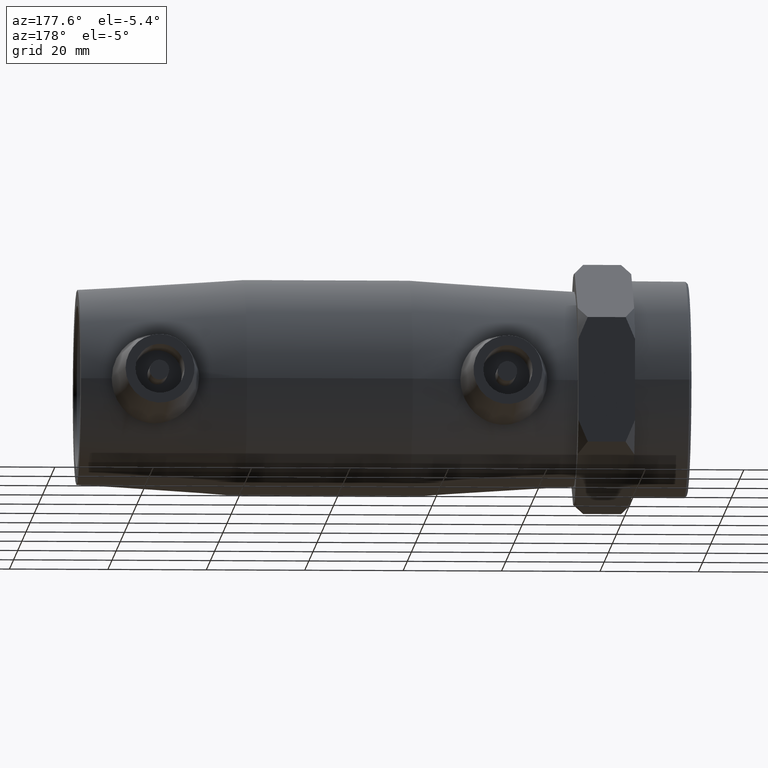
[diagram: clean part render]
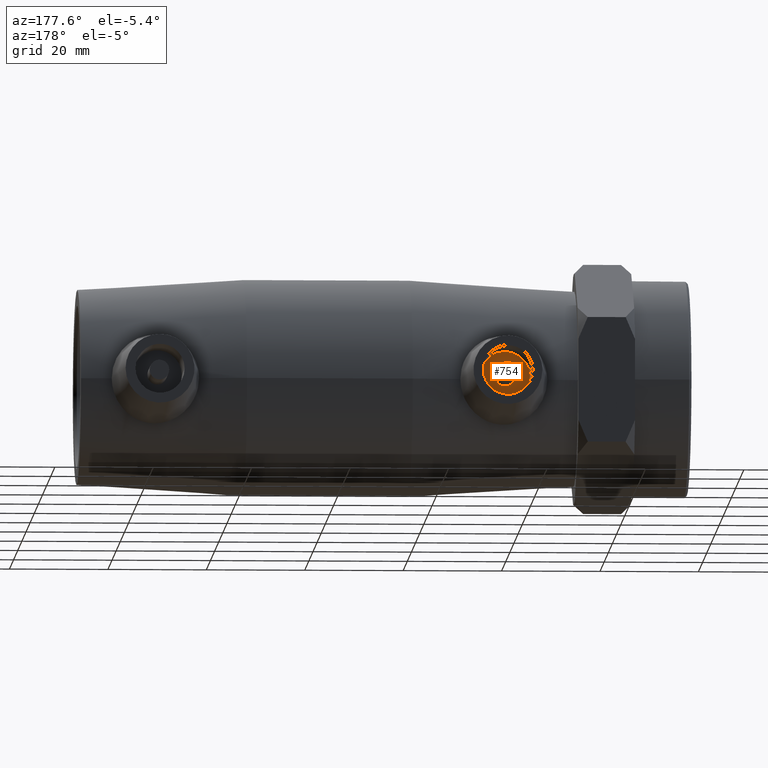
[diagram: same view with one face highlighted and labeled with its STEP entity id]
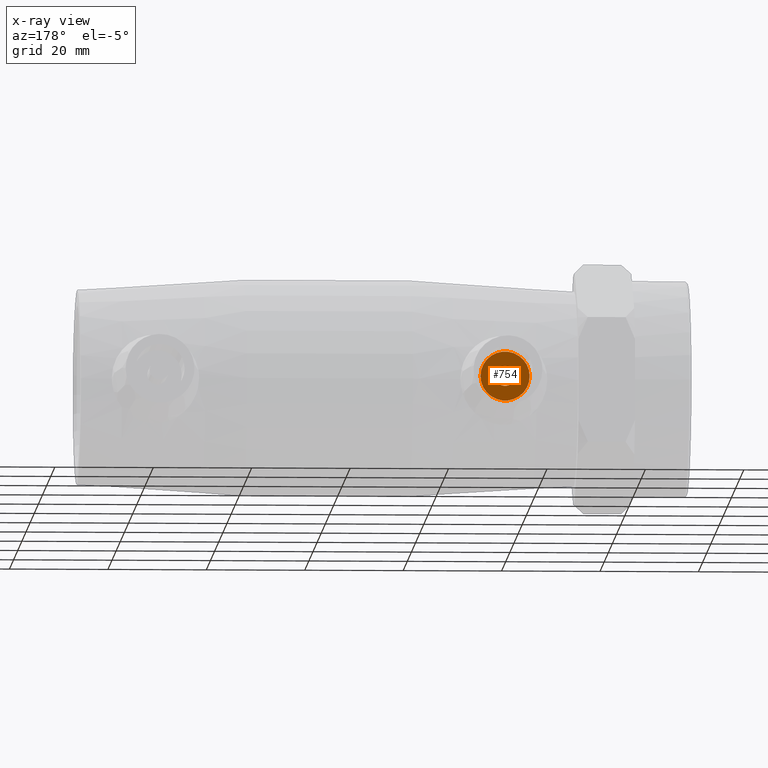
[diagram: x-ray of the same camera — body ghosted, the highlighted face saturated]
A machine part, auxiliary view. The second image highlights one B-rep face of the part: STEP entity #754.
The next image is the same camera in x-ray: the body ghosted, the highlighted face saturated — about 0% of this face is hidden behind the body in this view.
In plain terms, the highlighted planar face has unit normal (0, 1, 0).
Its self-contained STEP definition (entity closure, byte-faithful):
#118=PLANE('',#848);
#139=FACE_BOUND('',#266,.T.);
#195=FACE_OUTER_BOUND('',#265,.T.);
#265=EDGE_LOOP('',(#666));
#266=EDGE_LOOP('',(#667));
#326=CIRCLE('',#844,2.);
#327=CIRCLE('',#846,5.);
#395=VERTEX_POINT('',#1323);
#396=VERTEX_POINT('',#1326);
#490=EDGE_CURVE('',#395,#395,#326,.T.);
#491=EDGE_CURVE('',#396,#396,#327,.T.);
#666=ORIENTED_EDGE('',*,*,#491,.F.);
#667=ORIENTED_EDGE('',*,*,#490,.F.);
#754=ADVANCED_FACE('',(#195,#139),#118,.T.);
#844=AXIS2_PLACEMENT_3D('',#1324,#1045,#1046);
#846=AXIS2_PLACEMENT_3D('',#1327,#1049,#1050);
#848=AXIS2_PLACEMENT_3D('',#1330,#1053,#1054);
#1045=DIRECTION('center_axis',(0.,1.,0.));
#1046=DIRECTION('ref_axis',(-1.,0.,0.));
#1049=DIRECTION('center_axis',(0.,-1.,0.));
#1050=DIRECTION('ref_axis',(-1.,0.,0.));
#1053=DIRECTION('center_axis',(0.,1.,0.));
#1054=DIRECTION('ref_axis',(0.,0.,1.));
#1323=CARTESIAN_POINT('',(-33.35,28.,-2.44929359829471E-16));
#1324=CARTESIAN_POINT('Origin',(-35.35,28.,0.));
#1326=CARTESIAN_POINT('',(-30.35,28.,-6.12323399573677E-16));
#1327=CARTESIAN_POINT('Origin',(-35.35,28.,0.));
#1330=CARTESIAN_POINT('Origin',(-35.35,28.,-9.25185853854297E-17));